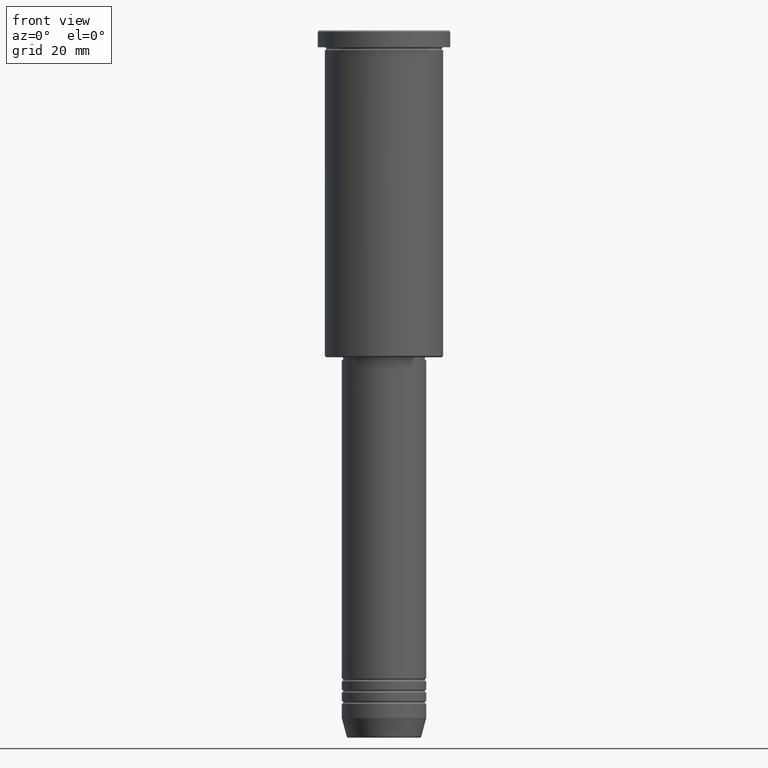
[diagram: clean part render]
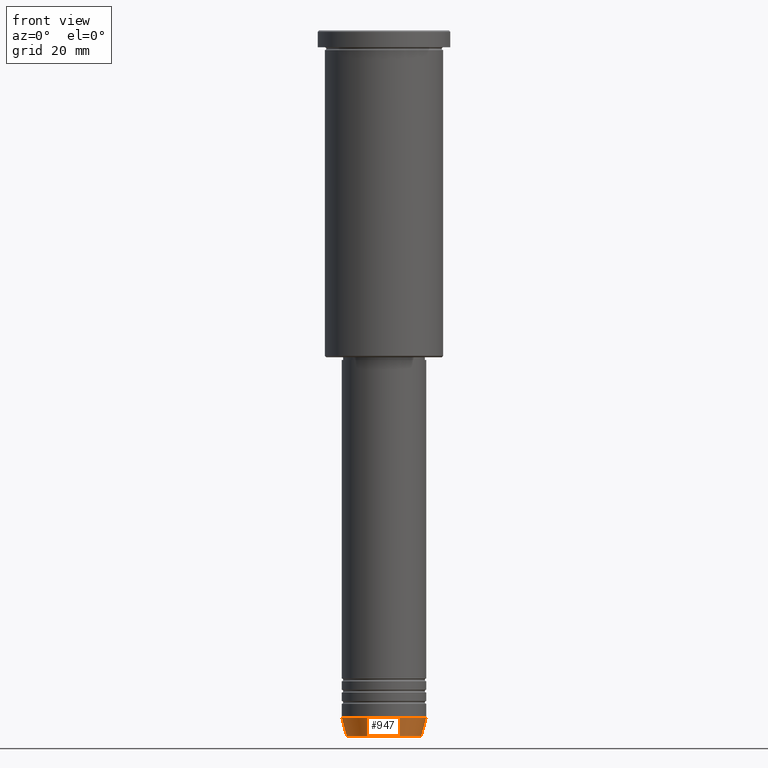
[diagram: same view with one face highlighted and labeled with its STEP entity id]
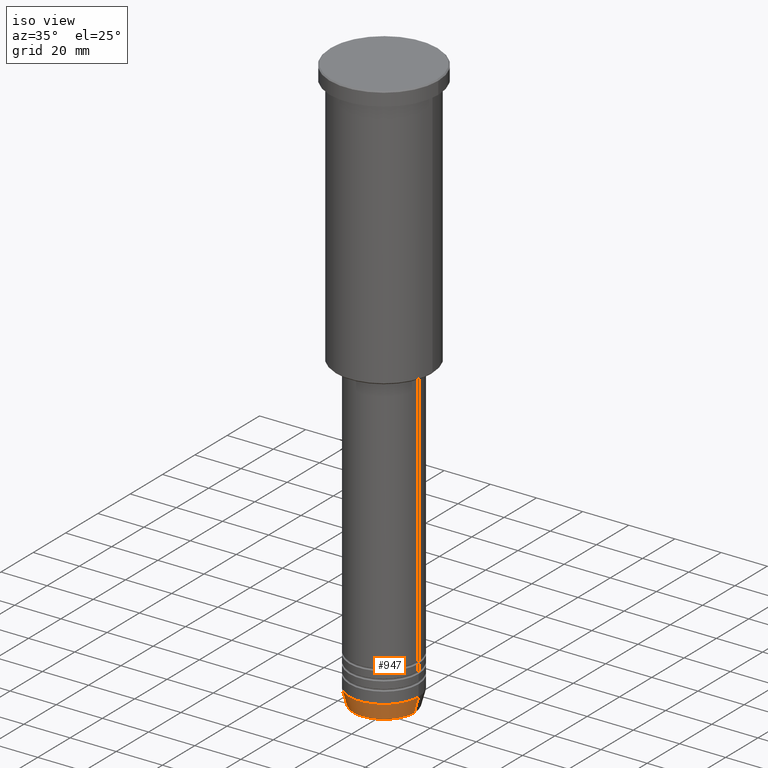
[diagram: same view with one face highlighted and labeled with its STEP entity id]
A machine part, front view. The second image highlights one B-rep face of the part: STEP entity #947.
A second angle (iso view) of the same face is appended — the face is thin or edge-on in the first view.
In plain terms, the highlighted conical surface has half-angle 15 deg.
Its self-contained STEP definition (entity closure, byte-faithful):
#19 = DIRECTION ( 'NONE',  ( -0.000000000000000000, -0.000000000000000000, 1.000000000000000000 ) ) ;
#22 = CARTESIAN_POINT ( 'NONE',  ( 15.00000000000000000, 0.000000000000000000, -244.0000000000000000 ) ) ;
#34 = CONICAL_SURFACE ( 'NONE', #189, 15.00000000000000000, 0.2617993877991500740 ) ;
#131 = VECTOR ( 'NONE', #221, 1000.000000000000000 ) ;
#189 = AXIS2_PLACEMENT_3D ( 'NONE', #984, #430, #799 ) ;
#200 = VERTEX_POINT ( 'NONE', #745 ) ;
#212 = EDGE_CURVE ( 'NONE', #200, #739, #363, .T. ) ;
#221 = DIRECTION ( 'NONE',  ( -0.2588190451025213501, 3.169619151431772337E-17, 0.9659258262890680902 ) ) ;
#235 = FACE_OUTER_BOUND ( 'NONE', #870, .T. ) ;
#271 = CARTESIAN_POINT ( 'NONE',  ( -13.22365507213719660, 1.728200442216588780E-15, -250.6294095225512422 ) ) ;
#322 = AXIS2_PLACEMENT_3D ( 'NONE', #472, #914, #926 ) ;
#345 = CARTESIAN_POINT ( 'NONE',  ( 13.22365507213719482, 0.000000000000000000, -250.6294095225512422 ) ) ;
#363 = CIRCLE ( 'NONE', #322, 15.00000000000000000 ) ;
#383 = AXIS2_PLACEMENT_3D ( 'NONE', #845, #19, #759 ) ;
#398 = CARTESIAN_POINT ( 'NONE',  ( -15.00000000000000000, 1.836970198721029589E-15, -244.0000000000000000 ) ) ;
#430 = DIRECTION ( 'NONE',  ( -0.000000000000000000, -0.000000000000000000, 1.000000000000000000 ) ) ;
#442 = ORIENTED_EDGE ( 'NONE', *, *, #212, .F. ) ;
#472 = CARTESIAN_POINT ( 'NONE',  ( 0.000000000000000000, 0.000000000000000000, -244.0000000000000000 ) ) ;
#550 = VECTOR ( 'NONE', #624, 1000.000000000000000 ) ;
#599 = VERTEX_POINT ( 'NONE', #271 ) ;
#624 = DIRECTION ( 'NONE',  ( 0.2588190451025213501, 0.000000000000000000, 0.9659258262890680902 ) ) ;
#739 = VERTEX_POINT ( 'NONE', #22 ) ;
#745 = CARTESIAN_POINT ( 'NONE',  ( -15.00000000000000000, 1.836970198721029589E-15, -244.0000000000000000 ) ) ;
#759 = DIRECTION ( 'NONE',  ( 1.000000000000000000, 0.000000000000000000, 0.000000000000000000 ) ) ;
#775 = LINE ( 'NONE', #398, #131 ) ;
#784 = EDGE_CURVE ( 'NONE', #599, #200, #775, .T. ) ;
#799 = DIRECTION ( 'NONE',  ( 1.000000000000000000, 0.000000000000000000, 0.000000000000000000 ) ) ;
#845 = CARTESIAN_POINT ( 'NONE',  ( 0.000000000000000000, 0.000000000000000000, -250.6294095225512422 ) ) ;
#862 = CIRCLE ( 'NONE', #383, 13.22365507213719482 ) ;
#870 = EDGE_LOOP ( 'NONE', ( #1092, #1034, #892, #442 ) ) ;
#892 = ORIENTED_EDGE ( 'NONE', *, *, #1036, .T. ) ;
#910 = LINE ( 'NONE', #1005, #550 ) ;
#914 = DIRECTION ( 'NONE',  ( -0.000000000000000000, -0.000000000000000000, 1.000000000000000000 ) ) ;
#926 = DIRECTION ( 'NONE',  ( 1.000000000000000000, 0.000000000000000000, 0.000000000000000000 ) ) ;
#942 = VERTEX_POINT ( 'NONE', #345 ) ;
#947 = ADVANCED_FACE ( 'NONE', ( #235 ), #34, .T. ) ;
#984 = CARTESIAN_POINT ( 'NONE',  ( 0.000000000000000000, 0.000000000000000000, -244.0000000000000000 ) ) ;
#1005 = CARTESIAN_POINT ( 'NONE',  ( 15.00000000000000000, 0.000000000000000000, -244.0000000000000000 ) ) ;
#1034 = ORIENTED_EDGE ( 'NONE', *, *, #1159, .T. ) ;
#1036 = EDGE_CURVE ( 'NONE', #942, #739, #910, .T. ) ;
#1092 = ORIENTED_EDGE ( 'NONE', *, *, #784, .F. ) ;
#1159 = EDGE_CURVE ( 'NONE', #599, #942, #862, .T. ) ;